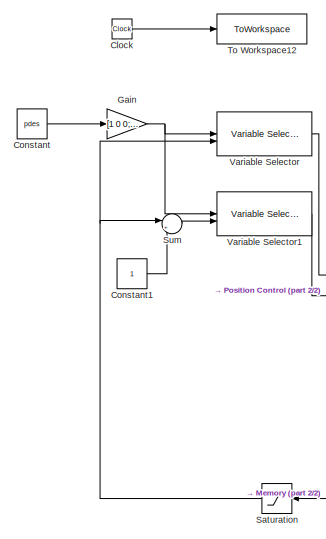
[diagram: root canvas - part 1/2, middle left region]
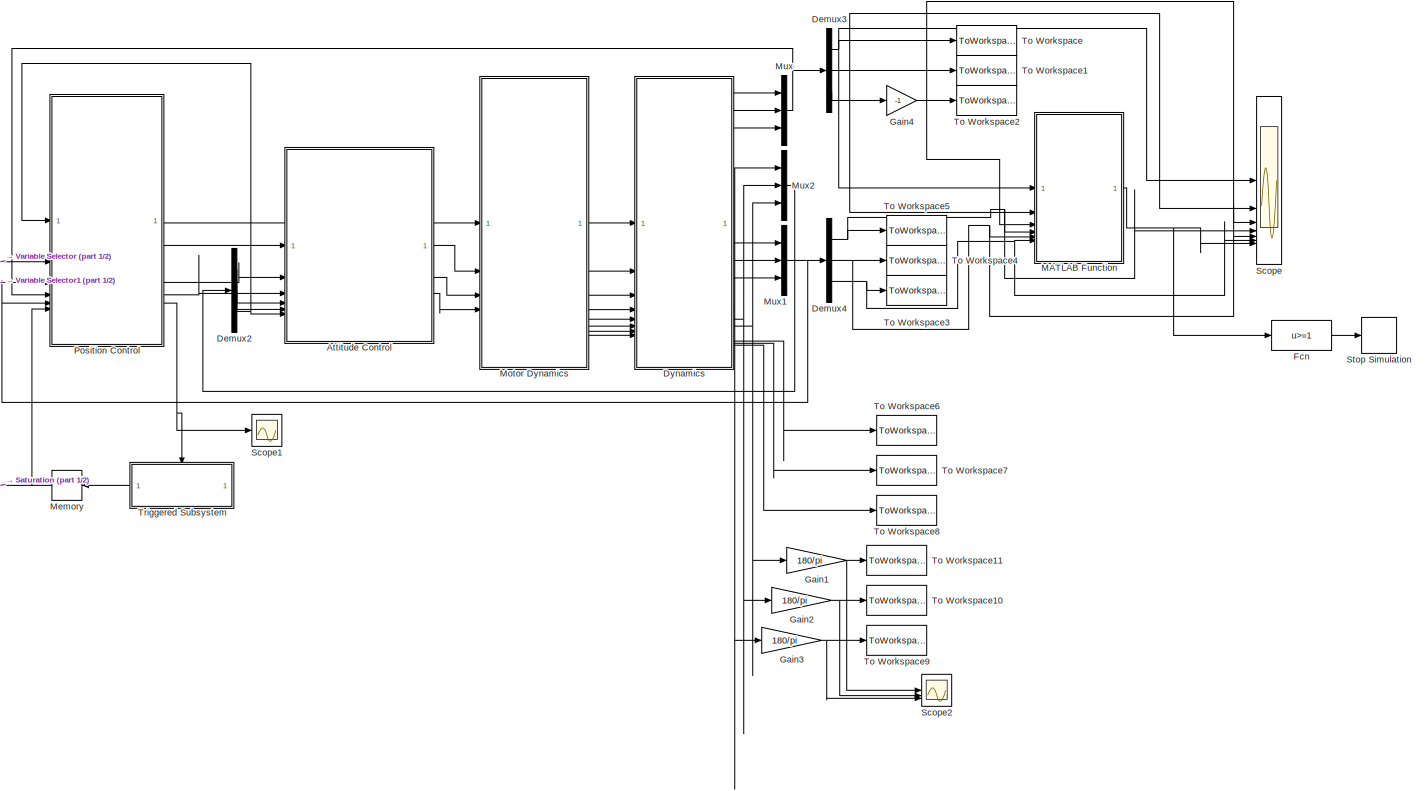
[diagram: root canvas - part 2/2, most of the canvas]
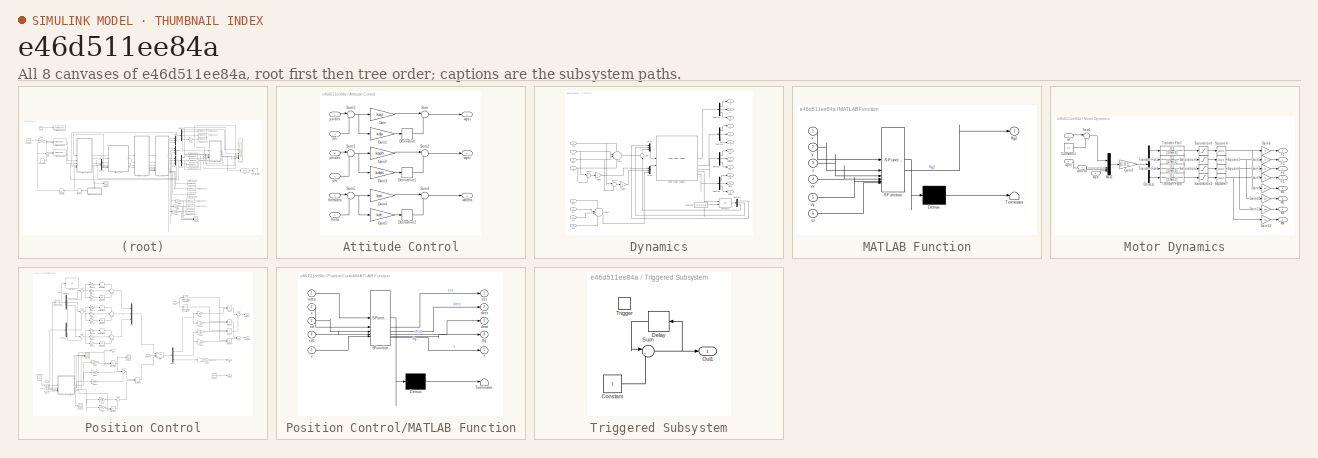
[diagram: thumbnail index - all 8 canvases of the model, root first then tree order]
MODEL slx_e46d511ee84a
KIND model
CONFIG AbsTol = auto
CONFIG EnableMultiTasking = off
CONFIG FixedStep = 0.01
CONFIG MaxStep = auto
CONFIG MinStep = auto
CONFIG RelTol = 1e-3
CONFIG SampleTimeConstraint = Unconstrained
CONFIG SolverName = VariableStepAuto
CONFIG StartTime = 0.0
CONFIG StopTime = 50
BLOCK [SubSystem] Attitude Control
BLOCK [Derivative] Attitude Control/Derivative
BLOCK [Derivative] Attitude Control/Derivative1
BLOCK [Derivative] Attitude Control/Derivative2
BLOCK [Gain] Attitude Control/Gain
  Gain = kpp
BLOCK [Gain] Attitude Control/Gain1
  Gain = kdp
BLOCK [Gain] Attitude Control/Gain2
  Gain = kpph
BLOCK [Gain] Attitude Control/Gain3
  Gain = kdph
BLOCK [Gain] Attitude Control/Gain4
  Gain = kpt
BLOCK [Gain] Attitude Control/Gain5
  Gain = kdt
BLOCK [Sum] Attitude Control/Sum
  Inputs = |++
BLOCK [Sum] Attitude Control/Sum1
  Inputs = |+-
BLOCK [Sum] Attitude Control/Sum2
  Inputs = |++
BLOCK [Sum] Attitude Control/Sum3
  Inputs = |+-
BLOCK [Sum] Attitude Control/Sum4
  Inputs = |++
BLOCK [Sum] Attitude Control/Sum5
  Inputs = |+-
BLOCK [Inport] Attitude Control/phi
  Port = 4
BLOCK [Inport] Attitude Control/phides
  Port = 2
BLOCK [Inport] Attitude Control/psi
  Port = 6
BLOCK [Inport] Attitude Control/psides
BLOCK [Inport] Attitude Control/theta
  Port = 5
BLOCK [Inport] Attitude Control/thetades
  Port = 3
BLOCK [Outport] Attitude Control/wphi
  Port = 2
  VectorParamsAs1DForOutWhenUnconnected = off
BLOCK [Outport] Attitude Control/wpsi
  VectorParamsAs1DForOutWhenUnconnected = off
BLOCK [Outport] Attitude Control/wtheta
  Port = 3
  VectorParamsAs1DForOutWhenUnconnected = off
BLOCK [Clock] Clock
BLOCK [Constant] Constant
  Value = pdes
BLOCK [Constant] Constant1
BLOCK [Demux] Demux2
  Outputs = 3
BLOCK [Demux] Demux3
  Outputs = 3
BLOCK [Demux] Demux4
  Outputs = 3
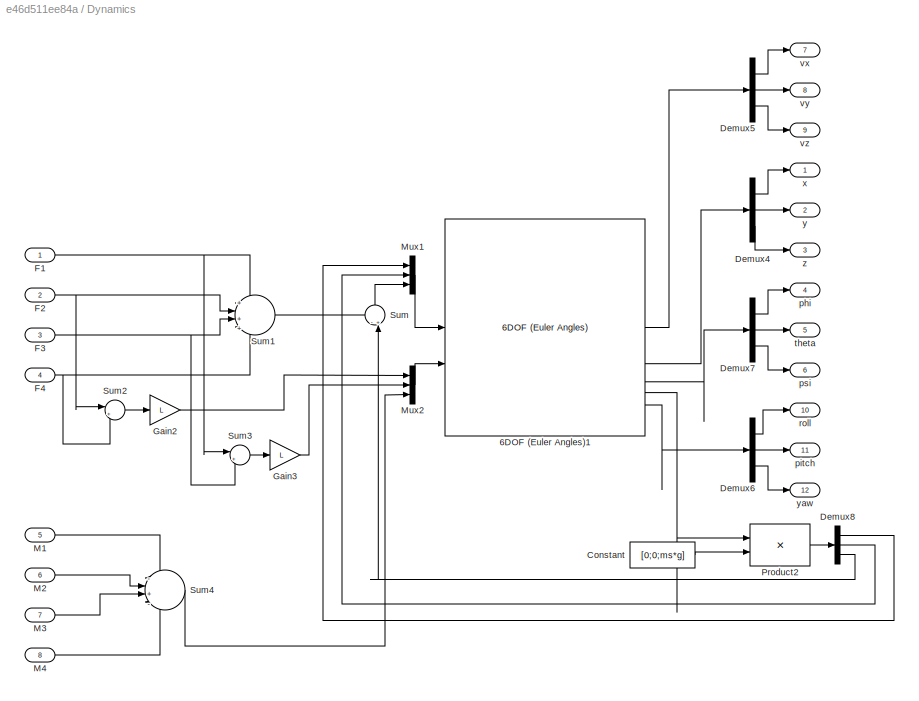
BLOCK [SubSystem] Dynamics
BLOCK [Reference] Dynamics/6DOF (Euler Angles)1  REF=shared6dof/6DOF (Euler Angles)
  SourceBlock = shared6dof/6DOF (Euler Angles)
  SourceType = 6DOF EoM (Body Axis)
BLOCK [Constant] Dynamics/Constant
  Value = [0;0;ms*g]
BLOCK [Demux] Dynamics/Demux4
  Outputs = 3
BLOCK [Demux] Dynamics/Demux5
  Outputs = 3
BLOCK [Demux] Dynamics/Demux6
  Outputs = 3
BLOCK [Demux] Dynamics/Demux7
  Outputs = 3
BLOCK [Demux] Dynamics/Demux8
  Outputs = 3
BLOCK [Inport] Dynamics/F1
BLOCK [Inport] Dynamics/F2
  Port = 2
BLOCK [Inport] Dynamics/F3
  Port = 3
BLOCK [Inport] Dynamics/F4
  Port = 4
BLOCK [Gain] Dynamics/Gain2
  Gain = L
BLOCK [Gain] Dynamics/Gain3
  Gain = L
BLOCK [Inport] Dynamics/M1
  Port = 5
BLOCK [Inport] Dynamics/M2
  Port = 6
BLOCK [Inport] Dynamics/M3
  Port = 7
BLOCK [Inport] Dynamics/M4
  Port = 8
BLOCK [Mux] Dynamics/Mux1
  DisplayOption = bar
  Inputs = 3
BLOCK [Mux] Dynamics/Mux2
  DisplayOption = bar
  Inputs = 3
BLOCK [Product] Dynamics/Product2
  Multiplication = Matrix(*)
BLOCK [Sum] Dynamics/Sum
  Inputs = -+|
  NameLocation = right
BLOCK [Sum] Dynamics/Sum1
  Inputs = +|+|+|+
BLOCK [Sum] Dynamics/Sum2
  Inputs = |+-
BLOCK [Sum] Dynamics/Sum3
  Inputs = |+-
BLOCK [Sum] Dynamics/Sum4
  Inputs = -|+|-|+
BLOCK [Outport] Dynamics/phi
  Port = 4
  VectorParamsAs1DForOutWhenUnconnected = off
BLOCK [Outport] Dynamics/pitch
  Port = 11
  VectorParamsAs1DForOutWhenUnconnected = off
BLOCK [Outport] Dynamics/psi
  Port = 6
  VectorParamsAs1DForOutWhenUnconnected = off
BLOCK [Outport] Dynamics/roll
  Port = 10
  VectorParamsAs1DForOutWhenUnconnected = off
BLOCK [Outport] Dynamics/theta
  Port = 5
  VectorParamsAs1DForOutWhenUnconnected = off
BLOCK [Outport] Dynamics/vx
  Port = 7
  VectorParamsAs1DForOutWhenUnconnected = off
BLOCK [Outport] Dynamics/vy
  Port = 8
  VectorParamsAs1DForOutWhenUnconnected = off
BLOCK [Outport] Dynamics/vz
  Port = 9
  VectorParamsAs1DForOutWhenUnconnected = off
BLOCK [Outport] Dynamics/x
  VectorParamsAs1DForOutWhenUnconnected = off
BLOCK [Outport] Dynamics/y
  Port = 2
  VectorParamsAs1DForOutWhenUnconnected = off
BLOCK [Outport] Dynamics/yaw
  Port = 12
  VectorParamsAs1DForOutWhenUnconnected = off
BLOCK [Outport] Dynamics/z
  Port = 3
  VectorParamsAs1DForOutWhenUnconnected = off
BLOCK [Fcn] Fcn
  Expr = u>=1
BLOCK [Gain] Gain
  Gain = [1 0 0;0 1 0;0 0 -1]
  Multiplication = Matrix(u*K)
BLOCK [Gain] Gain1
  Gain = 180/pi
BLOCK [Gain] Gain2
  Gain = 180/pi
BLOCK [Gain] Gain3
  Gain = 180/pi
BLOCK [Gain] Gain4
  Gain = -1
BLOCK [SubSystem] MATLAB Function
  ErrorFcn = Stateflow.Translate.translate
  PermitHierarchicalResolution = ExplicitOnly
  SFBlockType = MATLAB Function
  TreatAsAtomicUnit = on
BLOCK [Demux] MATLAB Function/ Demux 
  Outputs = 1
BLOCK [S-Function] MATLAB Function/ SFunction 
  EnableBusSupport = on
  FunctionName = sf_sfun
  Parameters = xdes,ydes,zdes
  PortCounts = [6 2]
  SFcnIsStateOwnerBlock = off
  SFunctionDeploymentMode = off
  Tag = Stateflow S-Function 5
BLOCK [Terminator] MATLAB Function/ Terminator 
BLOCK [Outport] MATLAB Function/flg2
  VectorParamsAs1DForOutWhenUnconnected = off
BLOCK [Inport] MATLAB Function/vx
  Port = 4
BLOCK [Inport] MATLAB Function/vy
  Port = 5
BLOCK [Inport] MATLAB Function/vz
  Port = 6
BLOCK [Inport] MATLAB Function/x
BLOCK [Inport] MATLAB Function/y
  Port = 2
BLOCK [Inport] MATLAB Function/z
  Port = 3
BLOCK [Memory] Memory
  NameLocation = top
BLOCK [SubSystem] Motor Dynamics
BLOCK [Constant] Motor Dynamics/Constant1
  Value = wh
BLOCK [Demux] Motor Dynamics/Demux1
BLOCK [Outport] Motor Dynamics/F1
  VectorParamsAs1DForOutWhenUnconnected = off
BLOCK [Outport] Motor Dynamics/F2
  Port = 2
  VectorParamsAs1DForOutWhenUnconnected = off
BLOCK [Outport] Motor Dynamics/F3
  Port = 3
  VectorParamsAs1DForOutWhenUnconnected = off
BLOCK [Outport] Motor Dynamics/F4
  Port = 4
  VectorParamsAs1DForOutWhenUnconnected = off
BLOCK [Gain] Motor Dynamics/Gain10
  Gain = Km
BLOCK [Gain] Motor Dynamics/Gain11
  Gain = Km
BLOCK [Gain] Motor Dynamics/Gain12
  Gain = Km
BLOCK [Gain] Motor Dynamics/Gain4
  Gain = [1 0 1 -1;1 1 0 1;1 0 -1 -1;1 -1 0 1]
  Multiplication = Matrix(K*u) (u vector)
BLOCK [Gain] Motor Dynamics/Gain5
  Gain = Kf
BLOCK [Gain] Motor Dynamics/Gain6
  Gain = Kf
BLOCK [Gain] Motor Dynamics/Gain7
  Gain = Kf
BLOCK [Gain] Motor Dynamics/Gain8
  Gain = Km
BLOCK [Gain] Motor Dynamics/Gain9
  Gain = Kf
BLOCK [Outport] Motor Dynamics/M1
  Port = 5
  VectorParamsAs1DForOutWhenUnconnected = off
BLOCK [Outport] Motor Dynamics/M2
  Port = 6
  VectorParamsAs1DForOutWhenUnconnected = off
BLOCK [Outport] Motor Dynamics/M3
  Port = 7
  VectorParamsAs1DForOutWhenUnconnected = off
BLOCK [Outport] Motor Dynamics/M4
  Port = 8
  VectorParamsAs1DForOutWhenUnconnected = off
BLOCK [Mux] Motor Dynamics/Mux2
  DisplayOption = bar
BLOCK [Saturate] Motor Dynamics/Saturation1
  LowerLimit = 3*40*pi
  UpperLimit = 3*260*pi
  ZeroCross = off
BLOCK [Saturate] Motor Dynamics/Saturation2
  LowerLimit = 3*40*pi
  UpperLimit = 3*260*pi
  ZeroCross = off
BLOCK [Saturate] Motor Dynamics/Saturation3
  LowerLimit = 3*40*pi
  UpperLimit = 3*260*pi
  ZeroCross = off
BLOCK [Saturate] Motor Dynamics/Saturation4
  LowerLimit = 3*40*pi
  UpperLimit = 3*260*pi
  ZeroCross = off
BLOCK [Math] Motor Dynamics/Square4
  Operator = square
  SignedPower = on
BLOCK [Math] Motor Dynamics/Square5
  Operator = square
  SignedPower = on
BLOCK [Math] Motor Dynamics/Square6
  Operator = square
  SignedPower = on
BLOCK [Math] Motor Dynamics/Square7
  Operator = square
  SignedPower = on
BLOCK [Sum] Motor Dynamics/Sum1
  Inputs = |++
BLOCK [TransferFcn] Motor Dynamics/Transfer Fcn5
  Denominator = [1/km 1]
BLOCK [TransferFcn] Motor Dynamics/Transfer Fcn6
  Denominator = [1/km 1]
BLOCK [TransferFcn] Motor Dynamics/Transfer Fcn7
  Denominator = [1/km 1]
BLOCK [TransferFcn] Motor Dynamics/Transfer Fcn8
  Denominator = [1/km 1]
BLOCK [Inport] Motor Dynamics/wf
BLOCK [Inport] Motor Dynamics/wphi
  Port = 3
BLOCK [Inport] Motor Dynamics/wpsi
  Port = 2
BLOCK [Inport] Motor Dynamics/wtheta
  Port = 4
BLOCK [Mux] Mux
  DisplayOption = bar
  Inputs = 3
BLOCK [Mux] Mux1
  DisplayOption = bar
  Inputs = 3
BLOCK [Mux] Mux2
  DisplayOption = bar
  Inputs = 3
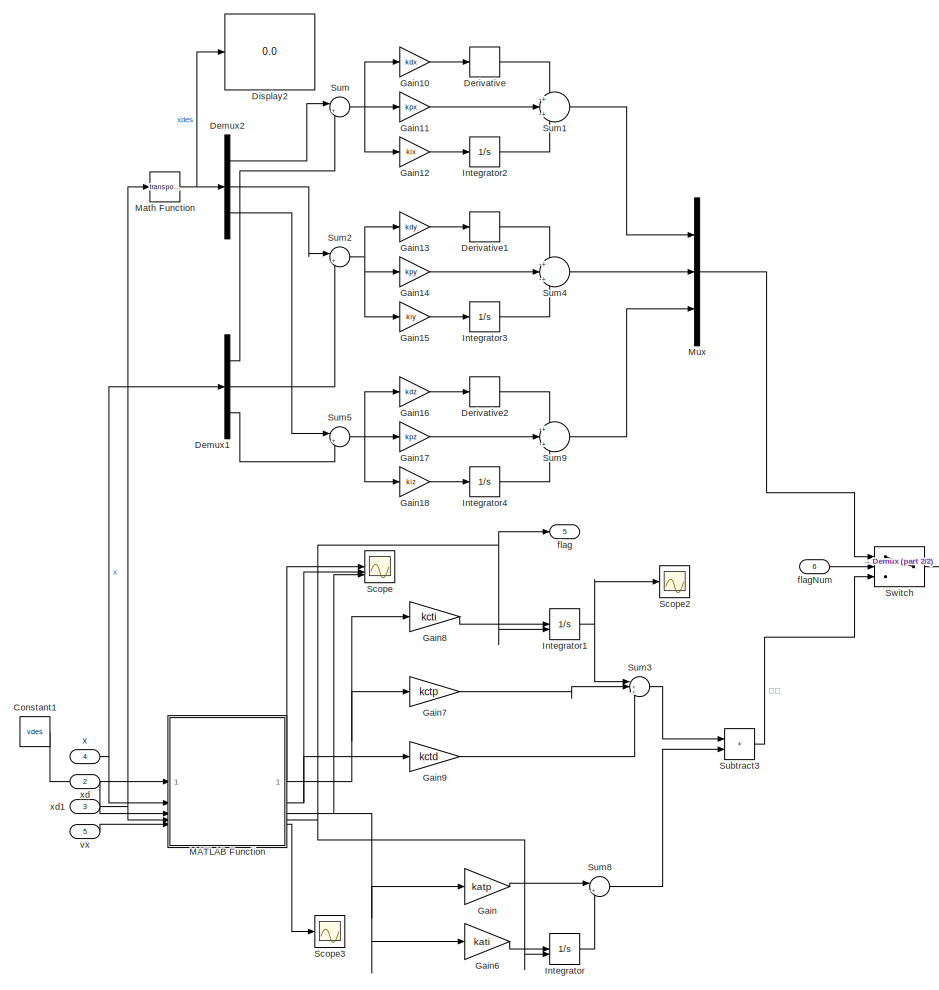
[diagram: Position Control - part 1/2, left side, full height]
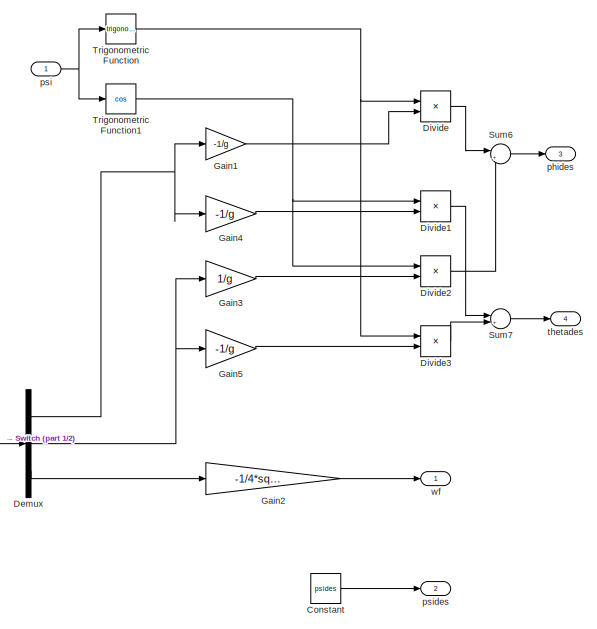
[diagram: Position Control - part 2/2, middle right region]
BLOCK [SubSystem] Position Control
BLOCK [Constant] Position Control/Constant
  Value = psides
BLOCK [Constant] Position Control/Constant1
  Value = vdes
BLOCK [Demux] Position Control/Demux
  Outputs = 3
BLOCK [Demux] Position Control/Demux1
  Outputs = 3
BLOCK [Demux] Position Control/Demux2
  Outputs = 3
BLOCK [Derivative] Position Control/Derivative
BLOCK [Derivative] Position Control/Derivative1
BLOCK [Derivative] Position Control/Derivative2
BLOCK [Display] Position Control/Display2
  Decimation = 1
BLOCK [Product] Position Control/Divide
  Inputs = **
BLOCK [Product] Position Control/Divide1
  Inputs = **
BLOCK [Product] Position Control/Divide2
  Inputs = **
BLOCK [Product] Position Control/Divide3
  Inputs = **
BLOCK [Gain] Position Control/Gain
  Gain = katp
BLOCK [Gain] Position Control/Gain1
  Gain = -1/g
BLOCK [Gain] Position Control/Gain10
  Gain = kdx
BLOCK [Gain] Position Control/Gain11
  Gain = kpx
BLOCK [Gain] Position Control/Gain12
  Gain = kix
BLOCK [Gain] Position Control/Gain13
  Gain = kdy
BLOCK [Gain] Position Control/Gain14
  Gain = kpy
BLOCK [Gain] Position Control/Gain15
  Gain = kiy
BLOCK [Gain] Position Control/Gain16
  Gain = kdz
BLOCK [Gain] Position Control/Gain17
  Gain = kpz
BLOCK [Gain] Position Control/Gain18
  Gain = kiz
BLOCK [Gain] Position Control/Gain2
  Gain = -1/4*sqrt(ms/Kf/g)
BLOCK [Gain] Position Control/Gain3
  Gain = 1/g
BLOCK [Gain] Position Control/Gain4
  Gain = -1/g
BLOCK [Gain] Position Control/Gain5
  Gain = -1/g
BLOCK [Gain] Position Control/Gain6
  Gain = kati
BLOCK [Gain] Position Control/Gain7
  Gain = kctp
BLOCK [Gain] Position Control/Gain8
  Gain = kcti
BLOCK [Gain] Position Control/Gain9
  Gain = kctd
BLOCK [Integrator] Position Control/Integrator
  ExternalReset = rising
BLOCK [Integrator] Position Control/Integrator1
  ExternalReset = rising
BLOCK [Integrator] Position Control/Integrator2
BLOCK [Integrator] Position Control/Integrator3
BLOCK [Integrator] Position Control/Integrator4
BLOCK [SubSystem] Position Control/MATLAB Function
  ErrorFcn = Stateflow.Translate.translate
  PermitHierarchicalResolution = ExplicitOnly
  SFBlockType = MATLAB Function
  TreatAsAtomicUnit = on
BLOCK [Demux] Position Control/MATLAB Function/ Demux 
  Outputs = 1
BLOCK [S-Function] Position Control/MATLAB Function/ SFunction 
  EnableBusSupport = on
  FunctionName = sf_sfun
  PortCounts = [5 6]
  SFcnIsStateOwnerBlock = off
  SFunctionDeploymentMode = off
  Tag = Stateflow S-Function 2
BLOCK [Terminator] Position Control/MATLAB Function/ Terminator 
BLOCK [Outport] Position Control/MATLAB Function/deat
  Port = 3
  VectorParamsAs1DForOutWhenUnconnected = off
BLOCK [Outport] Position Control/MATLAB Function/dect
  Port = 2
  VectorParamsAs1DForOutWhenUnconnected = off
BLOCK [Outport] Position Control/MATLAB Function/ect
  VectorParamsAs1DForOutWhenUnconnected = off
BLOCK [Outport] Position Control/MATLAB Function/f
  Port = 5
  VectorParamsAs1DForOutWhenUnconnected = off
BLOCK [Outport] Position Control/MATLAB Function/flg
  Port = 4
  VectorParamsAs1DForOutWhenUnconnected = off
BLOCK [Inport] Position Control/MATLAB Function/v
  Port = 5
BLOCK [Inport] Position Control/MATLAB Function/vdes
BLOCK [Inport] Position Control/MATLAB Function/x
  Port = 2
BLOCK [Inport] Position Control/MATLAB Function/xd
  Port = 3
BLOCK [Inport] Position Control/MATLAB Function/xd1
  Port = 4
BLOCK [Math] Position Control/Math Function
  Operator = transpose
  SignedPower = on
BLOCK [Mux] Position Control/Mux
  DisplayOption = bar
  Inputs = 3
BLOCK [Scope] Position Control/Scope
  Floating = off
  NumInputPorts = 3
  ScopeSpecificationString = Simulink.scopes.TimeScopeBlockCfg('CurrentConfiguration', extmgr.ConfigurationSet(extmgr.Configuration('Core','General UI',true),extmgr.Configuration('Core','Source UI',true),extmgr.Configuration('Sources','WiredSimulink',true,'DataLoggingVariableName','ScopeData2'),extmgr.Configuration('Visuals','Time Domain',true,'SerializedDisplays',{struct('MinYLimReal','-41.92976','MaxYLimReal','41.92922','YL...<+1585ch>
BLOCK [Scope] Position Control/Scope2
  Floating = off
  NumInputPorts = 1
  ScopeSpecificationString = Simulink.scopes.TimeScopeBlockCfg('CurrentConfiguration', extmgr.ConfigurationSet(extmgr.Configuration('Core','General UI',true),extmgr.Configuration('Core','Source UI',true),extmgr.Configuration('Sources','WiredSimulink',true,'DataLoggingVariableName','ScopeData5'),extmgr.Configuration('Visuals','Time Domain',true,'SerializedDisplays',{struct('MinYLimReal','-0.00042','MaxYLimReal','0.00005','YLab...<+1448ch>
BLOCK [Scope] Position Control/Scope3
  Floating = off
  NumInputPorts = 1
  ScopeSpecificationString = Simulink.scopes.TimeScopeBlockCfg('CurrentConfiguration', extmgr.ConfigurationSet(extmgr.Configuration('Core','General UI',true),extmgr.Configuration('Core','Source UI',true),extmgr.Configuration('Sources','WiredSimulink',true,'DataLoggingVariableName','ScopeData1'),extmgr.Configuration('Visuals','Time Domain',true,'SerializedDisplays',{struct('MinYLimReal','-82.68229','MaxYLimReal','-10.05809','Y...<+1428ch>
BLOCK [Sum] Position Control/Subtract3
  IconShape = rectangular
BLOCK [Sum] Position Control/Sum
  Inputs = |+-
BLOCK [Sum] Position Control/Sum1
  Inputs = +|+|+
BLOCK [Sum] Position Control/Sum2
  Inputs = |+-
BLOCK [Sum] Position Control/Sum3
  Inputs = |+++
BLOCK [Sum] Position Control/Sum4
  Inputs = +|+|+
BLOCK [Sum] Position Control/Sum5
  Inputs = |+-
BLOCK [Sum] Position Control/Sum6
  Inputs = |++
BLOCK [Sum] Position Control/Sum7
  Inputs = |++
BLOCK [Sum] Position Control/Sum8
  Inputs = |++
BLOCK [Sum] Position Control/Sum9
  Inputs = +|+|+
BLOCK [Switch] Position Control/Switch
  Criteria = u2 > Threshold
  InputSameDT = off
  SaturateOnIntegerOverflow = off
  Threshold = pointnum
BLOCK [Trigonometry] Position Control/Trigonometric Function
BLOCK [Trigonometry] Position Control/Trigonometric Function1
  Operator = cos
BLOCK [Outport] Position Control/flag
  Port = 5
  VectorParamsAs1DForOutWhenUnconnected = off
BLOCK [Inport] Position Control/flagNum
  Port = 6
BLOCK [Outport] Position Control/phides
  Port = 3
  VectorParamsAs1DForOutWhenUnconnected = off
BLOCK [Inport] Position Control/psi
BLOCK [Outport] Position Control/psides
  Port = 2
  VectorParamsAs1DForOutWhenUnconnected = off
BLOCK [Outport] Position Control/thetades
  Port = 4
  VectorParamsAs1DForOutWhenUnconnected = off
BLOCK [Inport] Position Control/vx
  Port = 5
BLOCK [Outport] Position Control/wf
  VectorParamsAs1DForOutWhenUnconnected = off
BLOCK [Inport] Position Control/x
  Port = 4
BLOCK [Inport] Position Control/xd
  Port = 2
BLOCK [Inport] Position Control/xd1
  Port = 3
BLOCK [Saturate] Saturation
  LowerLimit = 0
  NameLocation = top
  UpperLimit = pointnum
BLOCK [Scope] Scope
  Floating = off
  NumInputPorts = 7
  ScopeSpecificationString = Simulink.scopes.TimeScopeBlockCfg('CurrentConfiguration', extmgr.ConfigurationSet(extmgr.Configuration('Core','General UI',true,'FigureColor',[1 1 1]),extmgr.Configuration('Core','Source UI',true),extmgr.Configuration('Sources','WiredSimulink',true,'DataLoggingVariableName','ScopeData1'),extmgr.Configuration('Visuals','Time Domain',true,'SerializedDisplays',{struct('MinYLimReal','-3.05438','MaxYLi...<+2369ch>
BLOCK [Scope] Scope1
  Floating = off
  NumInputPorts = 1
  ScopeSpecificationString = Simulink.scopes.TimeScopeBlockCfg('CurrentConfiguration', extmgr.ConfigurationSet(extmgr.Configuration('Core','General UI',true),extmgr.Configuration('Core','Source UI',true),extmgr.Configuration('Sources','WiredSimulink',true,'DataLoggingVariableName','ScopeData2'),extmgr.Configuration('Visuals','Time Domain',true,'SerializedDisplays',{struct('MinYLimReal','-0.125','MaxYLimReal','1.125','YLabelRe...<+1360ch>
BLOCK [Scope] Scope2
  Floating = off
  NumInputPorts = 3
  ScopeSpecificationString = Simulink.scopes.TimeScopeBlockCfg('CurrentConfiguration', extmgr.ConfigurationSet(extmgr.Configuration('Core','General UI',true),extmgr.Configuration('Core','Source UI',true),extmgr.Configuration('Sources','WiredSimulink',true,'DataLoggingVariableName','ScopeData3'),extmgr.Configuration('Visuals','Time Domain',true,'SerializedDisplays',{struct('MinYLimReal','-11.82238','MaxYLimReal','21.84067','YL...<+1550ch>
BLOCK [Stop] Stop Simulation
BLOCK [Sum] Sum
  Inputs = |++
BLOCK [ToWorkspace] To Workspace
  FixptAsFi = on
  MaxDataPoints = inf
  SampleTime = -1
  VariableName = x_track
BLOCK [ToWorkspace] To Workspace1
  FixptAsFi = on
  MaxDataPoints = inf
  SampleTime = -1
  VariableName = y_track
BLOCK [ToWorkspace] To Workspace10
  FixptAsFi = on
  MaxDataPoints = inf
  SampleTime = -1
  VariableName = theta_track
BLOCK [ToWorkspace] To Workspace11
  FixptAsFi = on
  MaxDataPoints = inf
  SampleTime = -1
  VariableName = psi_track
BLOCK [ToWorkspace] To Workspace12
  MaxDataPoints = inf
  SampleTime = -1
  VariableName = time_track
BLOCK [ToWorkspace] To Workspace2
  FixptAsFi = on
  MaxDataPoints = inf
  SampleTime = -1
  VariableName = z_track
BLOCK [ToWorkspace] To Workspace3
  FixptAsFi = on
  MaxDataPoints = inf
  SampleTime = -1
  VariableName = vz
BLOCK [ToWorkspace] To Workspace4
  FixptAsFi = on
  MaxDataPoints = inf
  SampleTime = -1
  VariableName = vy
BLOCK [ToWorkspace] To Workspace5
  FixptAsFi = on
  MaxDataPoints = inf
  SampleTime = -1
  VariableName = vx
BLOCK [ToWorkspace] To Workspace6
  FixptAsFi = on
  MaxDataPoints = inf
  SampleTime = -1
  VariableName = w_roll
BLOCK [ToWorkspace] To Workspace7
  FixptAsFi = on
  MaxDataPoints = inf
  SampleTime = -1
  VariableName = w_pitch
BLOCK [ToWorkspace] To Workspace8
  FixptAsFi = on
  MaxDataPoints = inf
  SampleTime = -1
  VariableName = w_yaw
BLOCK [ToWorkspace] To Workspace9
  FixptAsFi = on
  MaxDataPoints = inf
  SampleTime = -1
  VariableName = fai_track
BLOCK [SubSystem] Triggered Subsystem
  TreatAsAtomicUnit = on
BLOCK [Constant] Triggered Subsystem/Constant
BLOCK [Delay] Triggered Subsystem/Delay
  DelayLength = 1
  InputPortMap = u0
BLOCK [Outport] Triggered Subsystem/Out1
  VectorParamsAs1DForOutWhenUnconnected = off
BLOCK [Sum] Triggered Subsystem/Sum
  Inputs = |++
BLOCK [TriggerPort] Triggered Subsystem/Trigger
  StatesWhenEnabling = held
  VariantControl = Variant
BLOCK [Reference] Variable Selector  REF=dspindex/Variable
Selector
  SourceBlock = dspindex/Variable\nSelector
  SourceType = Variable Selector
BLOCK [Reference] Variable Selector1  REF=dspindex/Variable
Selector
  SourceBlock = dspindex/Variable\nSelector
  SourceType = Variable Selector
LINE Attitude Control/Derivative1:1 -> Attitude Control/Sum2:2
LINE Attitude Control/Derivative2:1 -> Attitude Control/Sum4:2
LINE Attitude Control/Derivative:1 -> Attitude Control/Sum:2
LINE Attitude Control/Gain1:1 -> Attitude Control/Derivative:1
LINE Attitude Control/Gain2:1 -> Attitude Control/Sum2:1
LINE Attitude Control/Gain3:1 -> Attitude Control/Derivative1:1
LINE Attitude Control/Gain4:1 -> Attitude Control/Sum4:1
LINE Attitude Control/Gain5:1 -> Attitude Control/Derivative2:1
LINE Attitude Control/Gain:1 -> Attitude Control/Sum:1
NET Attitude Control/Sum1:1 -> Attitude Control/Gain1:1, Attitude Control/Gain:1
LINE Attitude Control/Sum2:1 -> Attitude Control/wphi:1
NET Attitude Control/Sum3:1 -> Attitude Control/Gain2:1, Attitude Control/Gain3:1
LINE Attitude Control/Sum4:1 -> Attitude Control/wtheta:1
NET Attitude Control/Sum5:1 -> Attitude Control/Gain4:1, Attitude Control/Gain5:1
LINE Attitude Control/Sum:1 -> Attitude Control/wpsi:1
LINE Attitude Control/phi:1 -> Attitude Control/Sum3:2
LINE Attitude Control/phides:1 -> Attitude Control/Sum3:1
LINE Attitude Control/psi:1 -> Attitude Control/Sum1:2
LINE Attitude Control/psides:1 -> Attitude Control/Sum1:1
LINE Attitude Control/theta:1 -> Attitude Control/Sum5:2
LINE Attitude Control/thetades:1 -> Attitude Control/Sum5:1
LINE Attitude Control:1 -> Motor Dynamics:2
LINE Attitude Control:2 -> Motor Dynamics:3
LINE Attitude Control:3 -> Motor Dynamics:4
LINE Clock:1 -> To Workspace12:1
LINE Constant1:1 -> Sum:2
LINE Constant:1 -> Gain:1
LINE Demux2:1 -> Attitude Control:4
LINE Demux2:2 -> Attitude Control:5
NET Demux2:3 -> Attitude Control:6, Position Control:1
NET Demux3:1 -> MATLAB Function:1, Scope:1, To Workspace:1
NET Demux3:2 -> MATLAB Function:2, Scope:2, To Workspace1:1
LINE Demux3:3 -> Gain4:1
NET Demux4:1 -> MATLAB Function:4, Scope:4, To Workspace5:1
NET Demux4:2 -> MATLAB Function:5, Scope:5, To Workspace4:1
NET Demux4:3 -> MATLAB Function:6, Scope:6, To Workspace3:1
LINE Dynamics/6DOF (Euler Angles)1:1 -> Dynamics/Demux5:1
LINE Dynamics/6DOF (Euler Angles)1:2 -> Dynamics/Demux4:1
LINE Dynamics/6DOF (Euler Angles)1:3 -> Dynamics/Demux7:1
LINE Dynamics/6DOF (Euler Angles)1:4 -> Dynamics/Product2:1
LINE Dynamics/6DOF (Euler Angles)1:6 -> Dynamics/Demux6:1
LINE Dynamics/Constant:1 -> Dynamics/Product2:2
LINE Dynamics/Demux4:1 -> Dynamics/x:1
LINE Dynamics/Demux4:2 -> Dynamics/y:1
LINE Dynamics/Demux4:3 -> Dynamics/z:1
LINE Dynamics/Demux5:1 -> Dynamics/vx:1
LINE Dynamics/Demux5:2 -> Dynamics/vy:1
LINE Dynamics/Demux5:3 -> Dynamics/vz:1
LINE Dynamics/Demux6:1 -> Dynamics/roll:1
LINE Dynamics/Demux6:2 -> Dynamics/pitch:1
LINE Dynamics/Demux6:3 -> Dynamics/yaw:1
LINE Dynamics/Demux7:1 -> Dynamics/phi:1
LINE Dynamics/Demux7:2 -> Dynamics/theta:1
LINE Dynamics/Demux7:3 -> Dynamics/psi:1
LINE Dynamics/Demux8:1 -> Dynamics/Mux1:1
LINE Dynamics/Demux8:2 -> Dynamics/Mux1:2
LINE Dynamics/Demux8:3 -> Dynamics/Sum:2
NET Dynamics/F1:1 -> Dynamics/Sum1:1, Dynamics/Sum3:1
NET Dynamics/F2:1 -> Dynamics/Sum1:2, Dynamics/Sum2:1
NET Dynamics/F3:1 -> Dynamics/Sum1:3, Dynamics/Sum3:2
NET Dynamics/F4:1 -> Dynamics/Sum1:4, Dynamics/Sum2:2
LINE Dynamics/Gain2:1 -> Dynamics/Mux2:1
LINE Dynamics/Gain3:1 -> Dynamics/Mux2:2
LINE Dynamics/M1:1 -> Dynamics/Sum4:1
LINE Dynamics/M2:1 -> Dynamics/Sum4:2
LINE Dynamics/M3:1 -> Dynamics/Sum4:3
LINE Dynamics/M4:1 -> Dynamics/Sum4:4
LINE Dynamics/Mux1:1 -> Dynamics/6DOF (Euler Angles)1:1
LINE Dynamics/Mux2:1 -> Dynamics/6DOF (Euler Angles)1:2
LINE Dynamics/Product2:1 -> Dynamics/Demux8:1
LINE Dynamics/Sum1:1 -> Dynamics/Sum:1
LINE Dynamics/Sum2:1 -> Dynamics/Gain2:1
LINE Dynamics/Sum3:1 -> Dynamics/Gain3:1
LINE Dynamics/Sum4:1 -> Dynamics/Mux2:3
LINE Dynamics/Sum:1 -> Dynamics/Mux1:3
LINE Dynamics:1 -> Mux:1
LINE Dynamics:10 -> To Workspace6:1
LINE Dynamics:11 -> To Workspace7:1
LINE Dynamics:12 -> To Workspace8:1
LINE Dynamics:2 -> Mux:2
LINE Dynamics:3 -> Mux:3
NET Dynamics:4 -> Gain3:1, Mux2:1
NET Dynamics:5 -> Gain2:1, Mux2:2
NET Dynamics:6 -> Gain1:1, Mux2:3
LINE Dynamics:7 -> Mux1:1
LINE Dynamics:8 -> Mux1:2
LINE Dynamics:9 -> Mux1:3
LINE Fcn:1 -> Stop Simulation:1
NET Gain1:1 -> Scope2:1, To Workspace11:1
NET Gain2:1 -> Scope2:2, To Workspace10:1
NET Gain3:1 -> Scope2:3, To Workspace9:1
NET Gain4:1 -> MATLAB Function:3, Scope:3, To Workspace2:1
NET Gain:1 -> Variable Selector1:1, Variable Selector:1
NET MATLAB Function:1 -> Fcn:1, Scope:7
NET Memory:1 -> Position Control:6, Saturation:1
LINE Motor Dynamics/Constant1:1 -> Motor Dynamics/Sum1:2
LINE Motor Dynamics/Demux1:1 -> Motor Dynamics/Transfer Fcn7:1
LINE Motor Dynamics/Demux1:2 -> Motor Dynamics/Transfer Fcn5:1
LINE Motor Dynamics/Demux1:3 -> Motor Dynamics/Transfer Fcn6:1
LINE Motor Dynamics/Demux1:4 -> Motor Dynamics/Transfer Fcn8:1
LINE Motor Dynamics/Gain10:1 -> Motor Dynamics/M2:1
LINE Motor Dynamics/Gain11:1 -> Motor Dynamics/M3:1
LINE Motor Dynamics/Gain12:1 -> Motor Dynamics/M4:1
LINE Motor Dynamics/Gain4:1 -> Motor Dynamics/Demux1:1
LINE Motor Dynamics/Gain5:1 -> Motor Dynamics/F2:1
LINE Motor Dynamics/Gain6:1 -> Motor Dynamics/F1:1
LINE Motor Dynamics/Gain7:1 -> Motor Dynamics/F3:1
LINE Motor Dynamics/Gain8:1 -> Motor Dynamics/M1:1
LINE Motor Dynamics/Gain9:1 -> Motor Dynamics/F4:1
LINE Motor Dynamics/Mux2:1 -> Motor Dynamics/Gain4:1
LINE Motor Dynamics/Saturation1:1 -> Motor Dynamics/Square5:1
LINE Motor Dynamics/Saturation2:1 -> Motor Dynamics/Square6:1
LINE Motor Dynamics/Saturation3:1 -> Motor Dynamics/Square7:1
LINE Motor Dynamics/Saturation4:1 -> Motor Dynamics/Square4:1
NET Motor Dynamics/Square4:1 -> Motor Dynamics/Gain6:1, Motor Dynamics/Gain8:1
NET Motor Dynamics/Square5:1 -> Motor Dynamics/Gain10:1, Motor Dynamics/Gain5:1
NET Motor Dynamics/Square6:1 -> Motor Dynamics/Gain11:1, Motor Dynamics/Gain7:1
NET Motor Dynamics/Square7:1 -> Motor Dynamics/Gain12:1, Motor Dynamics/Gain9:1
LINE Motor Dynamics/Sum1:1 -> Motor Dynamics/Mux2:1
LINE Motor Dynamics/Transfer Fcn5:1 -> Motor Dynamics/Saturation1:1
LINE Motor Dynamics/Transfer Fcn6:1 -> Motor Dynamics/Saturation2:1
LINE Motor Dynamics/Transfer Fcn7:1 -> Motor Dynamics/Saturation4:1
LINE Motor Dynamics/Transfer Fcn8:1 -> Motor Dynamics/Saturation3:1
LINE Motor Dynamics/wf:1 -> Motor Dynamics/Sum1:1
LINE Motor Dynamics/wphi:1 -> Motor Dynamics/Mux2:2
LINE Motor Dynamics/wpsi:1 -> Motor Dynamics/Mux2:4
LINE Motor Dynamics/wtheta:1 -> Motor Dynamics/Mux2:3
LINE Motor Dynamics:1 -> Dynamics:1
LINE Motor Dynamics:2 -> Dynamics:2
LINE Motor Dynamics:3 -> Dynamics:3
LINE Motor Dynamics:4 -> Dynamics:4
LINE Motor Dynamics:5 -> Dynamics:5
LINE Motor Dynamics:6 -> Dynamics:6
LINE Motor Dynamics:7 -> Dynamics:7
LINE Motor Dynamics:8 -> Dynamics:8
NET Mux1:1 -> Demux4:1, Position Control:5
LINE Mux2:1 -> Demux2:1
NET Mux:1 -> Demux3:1, Position Control:4
LINE Position Control/Constant1:1 -> Position Control/MATLAB Function:1
LINE Position Control/Constant:1 -> Position Control/psides:1
LINE Position Control/Demux1:1 -> Position Control/Sum:2
LINE Position Control/Demux1:2 -> Position Control/Sum2:2
LINE Position Control/Demux1:3 -> Position Control/Sum5:2
LINE Position Control/Demux2:1 -> Position Control/Sum:1
LINE Position Control/Demux2:2 -> Position Control/Sum2:1
LINE Position Control/Demux2:3 -> Position Control/Sum5:1
NET Position Control/Demux:1 -> Position Control/Gain1:1, Position Control/Gain4:1
NET Position Control/Demux:2 -> Position Control/Gain3:1, Position Control/Gain5:1
LINE Position Control/Demux:3 -> Position Control/Gain2:1
LINE Position Control/Derivative1:1 -> Position Control/Sum4:1
LINE Position Control/Derivative2:1 -> Position Control/Sum9:1
LINE Position Control/Derivative:1 -> Position Control/Sum1:1
LINE Position Control/Divide1:1 -> Position Control/Sum7:1
LINE Position Control/Divide2:1 -> Position Control/Sum6:2
LINE Position Control/Divide3:1 -> Position Control/Sum7:2
LINE Position Control/Divide:1 -> Position Control/Sum6:1
LINE Position Control/Gain10:1 -> Position Control/Derivative:1
LINE Position Control/Gain11:1 -> Position Control/Sum1:2
LINE Position Control/Gain12:1 -> Position Control/Integrator2:1
LINE Position Control/Gain13:1 -> Position Control/Derivative1:1
LINE Position Control/Gain14:1 -> Position Control/Sum4:2
LINE Position Control/Gain15:1 -> Position Control/Integrator3:1
LINE Position Control/Gain16:1 -> Position Control/Derivative2:1
LINE Position Control/Gain17:1 -> Position Control/Sum9:2
LINE Position Control/Gain18:1 -> Position Control/Integrator4:1
LINE Position Control/Gain1:1 -> Position Control/Divide:2
LINE Position Control/Gain2:1 -> Position Control/wf:1
LINE Position Control/Gain3:1 -> Position Control/Divide2:2
LINE Position Control/Gain4:1 -> Position Control/Divide1:2
LINE Position Control/Gain5:1 -> Position Control/Divide3:2
LINE Position Control/Gain6:1 -> Position Control/Integrator:1
LINE Position Control/Gain7:1 -> Position Control/Sum3:2
LINE Position Control/Gain8:1 -> Position Control/Integrator1:1
LINE Position Control/Gain9:1 -> Position Control/Sum3:3
LINE Position Control/Gain:1 -> Position Control/Sum8:1
NET Position Control/Integrator1:1 -> Position Control/Scope2:1, Position Control/Sum3:1
LINE Position Control/Integrator2:1 -> Position Control/Sum1:3
LINE Position Control/Integrator3:1 -> Position Control/Sum4:3
LINE Position Control/Integrator4:1 -> Position Control/Sum9:3
LINE Position Control/Integrator:1 -> Position Control/Sum8:2
NET Position Control/MATLAB Function:1 -> Position Control/Gain7:1, Position Control/Gain8:1, Position Control/Scope:1
NET Position Control/MATLAB Function:2 -> Position Control/Gain9:1, Position Control/Scope:2
NET Position Control/MATLAB Function:3 -> Position Control/Gain6:1, Position Control/Gain:1, Position Control/Scope:3
NET Position Control/MATLAB Function:4 -> Position Control/Integrator1:2, Position Control/Integrator:2, Position Control/flag:1
LINE Position Control/MATLAB Function:5 -> Position Control/Scope3:1
NET Position Control/Math Function:1 -> Position Control/Demux2:1, Position Control/Display2:1
LINE Position Control/Mux:1 -> Position Control/Switch:1
LINE Position Control/Subtract3:1 -> Position Control/Switch:3
LINE Position Control/Sum1:1 -> Position Control/Mux:1
NET Position Control/Sum2:1 -> Position Control/Gain13:1, Position Control/Gain14:1, Position Control/Gain15:1
LINE Position Control/Sum3:1 -> Position Control/Subtract3:1
LINE Position Control/Sum4:1 -> Position Control/Mux:2
NET Position Control/Sum5:1 -> Position Control/Gain16:1, Position Control/Gain17:1, Position Control/Gain18:1
LINE Position Control/Sum6:1 -> Position Control/phides:1
LINE Position Control/Sum7:1 -> Position Control/thetades:1
LINE Position Control/Sum8:1 -> Position Control/Subtract3:2
LINE Position Control/Sum9:1 -> Position Control/Mux:3
NET Position Control/Sum:1 -> Position Control/Gain10:1, Position Control/Gain11:1, Position Control/Gain12:1
LINE Position Control/Switch:1 -> Position Control/Demux:1
NET Position Control/Trigonometric Function1:1 -> Position Control/Divide1:1, Position Control/Divide2:1
NET Position Control/Trigonometric Function:1 -> Position Control/Divide3:1, Position Control/Divide:1
LINE Position Control/flagNum:1 -> Position Control/Switch:2
NET Position Control/psi:1 -> Position Control/Trigonometric Function1:1, Position Control/Trigonometric Function:1
LINE Position Control/vx:1 -> Position Control/MATLAB Function:5
NET Position Control/x:1 -> Position Control/Demux1:1, Position Control/MATLAB Function:2
NET Position Control/xd1:1 -> Position Control/MATLAB Function:4, Position Control/Math Function:1
LINE Position Control/xd:1 -> Position Control/MATLAB Function:3
LINE Position Control:1 -> Motor Dynamics:1
LINE Position Control:2 -> Attitude Control:1
LINE Position Control:3 -> Attitude Control:2
LINE Position Control:4 -> Attitude Control:3
NET Position Control:5 -> Scope1:1, Triggered Subsystem:trigger
NET Saturation:1 -> Sum:1, Variable Selector:2
LINE Sum:1 -> Variable Selector1:2
LINE Triggered Subsystem/Constant:1 -> Triggered Subsystem/Sum:2
LINE Triggered Subsystem/Delay:1 -> Triggered Subsystem/Sum:1
NET Triggered Subsystem/Sum:1 -> Triggered Subsystem/Delay:1, Triggered Subsystem/Out1:1
LINE Triggered Subsystem:1 -> Memory:1
LINE Variable Selector1:1 -> Position Control:3
LINE Variable Selector:1 -> Position Control:2
note: NET lines group one-source signal fan-out (src -> all destinations, sorted); 1:1 wires keep LINE
CHART Position Control/MATLAB Function states=1 transitions=1
  STATE_LABEL 'eML_blk_kernel()'
  STATE_LABEL "SCRIPT:\nfunction [ect,dect,deat,flg,f] = fcn(vdes,x,xd,xd1,v)\nxd=xd';\nxd1=xd1';\nti=xd1-xd;\nabst=sqrt(sum(ti.^2));\nti=ti./abst;\nect=sum((x-xd).*ti)*ti-(x-xd);\ndect=sum(v.*ti)*ti-v;\ndeat=vdes*ti-sum(v.*ti)*ti;\nf=sum((x-xd1).*ti);\nif f<0\n    flg=0;\nelse\n    flg=1;\nend\nend\n\n"
CHART MATLAB Function states=1 transitions=1
  STATE_LABEL 'eML_blk_kernel()'
  STATE_LABEL 'SCRIPT:\nfunction flg2 = fcn(x, y, z, xdes, ydes, zdes, vx, vy, vz)\n    if (abs(x-xdes)<0.01) && (abs(y-ydes)<0.01) && abs(z-zdes)<0.01 && (abs(vx)<0.001) && (abs(vy)<0.001) && (abs(vz)<0.001)\n        flg2 = 1;\n    else\n        flg2 = 0;\n    end\nend\n'
CHART  states=0 transitions=0
CHART  states=0 transitions=0
